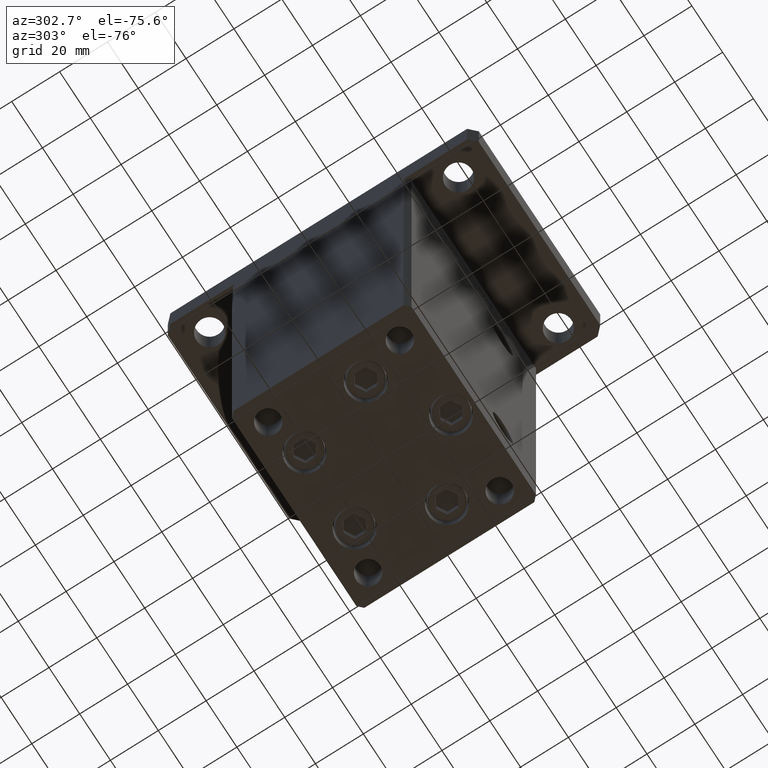
[diagram: clean part render]
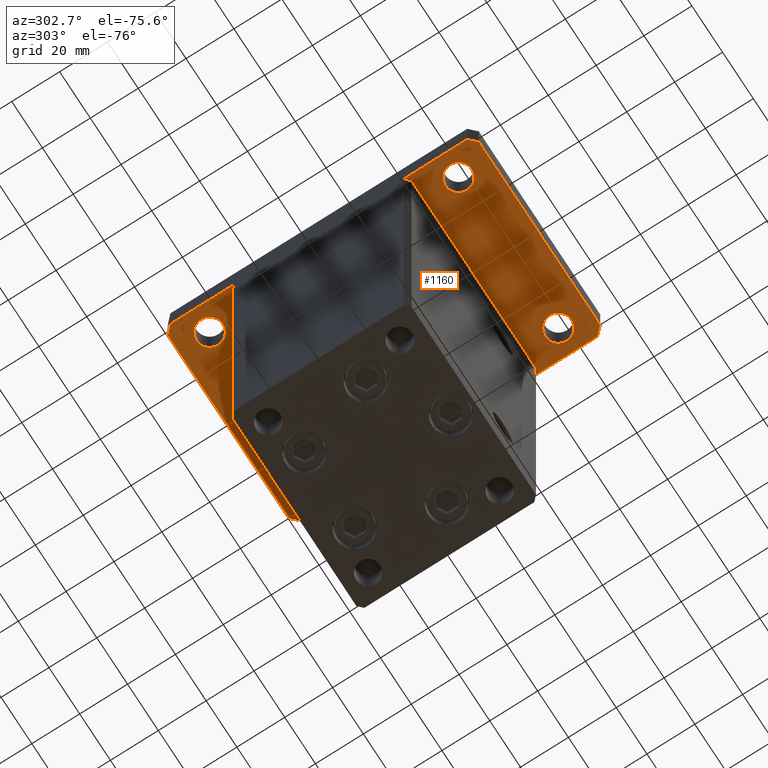
[diagram: same view with one face highlighted and labeled with its STEP entity id]
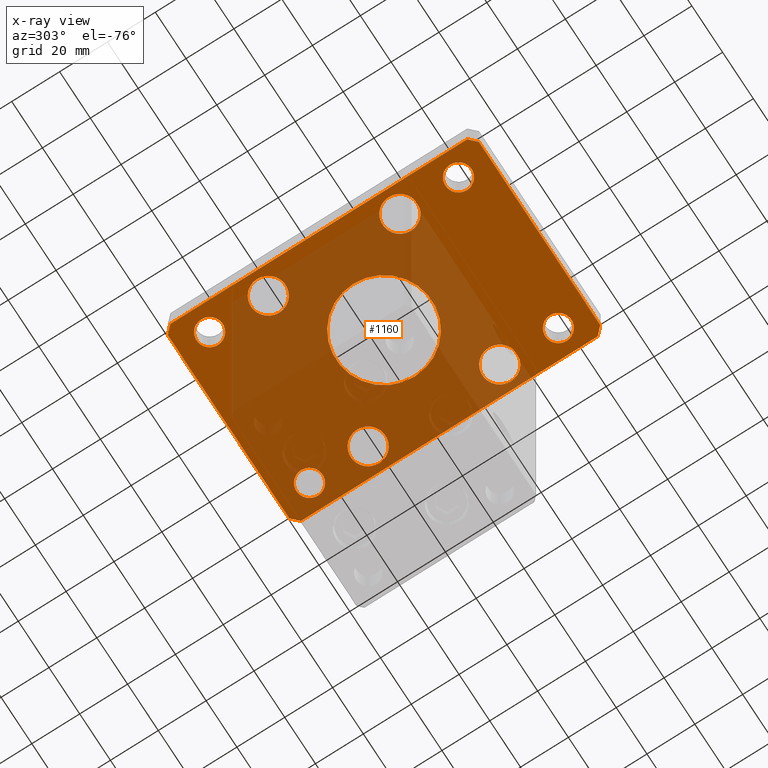
[diagram: x-ray of the same camera — body ghosted, the highlighted face saturated]
A machine part, auxiliary view. The second image highlights one B-rep face of the part: STEP entity #1160.
The next image is the same camera in x-ray: the body ghosted, the highlighted face saturated — about 61% of this face is hidden behind the body in this view.
In plain terms, the highlighted planar face has unit normal (0, 0, 1).
Its self-contained STEP definition (entity closure, byte-faithful):
#528 = CARTESIAN_POINT ( 'NONE',  ( -38.00000000000000000, 52.00000000000000000, 0.000000000000000000 ) ) ;
#980 = VERTEX_POINT ( 'NONE', #528 ) ;
#1033 = ORIENTED_EDGE ( 'NONE', *, *, #36657, .T. ) ;
#1100 = VERTEX_POINT ( 'NONE', #43910 ) ;
#1160 = ADVANCED_FACE ( 'NONE', ( #12403, #33302, #42239, #12947, #21378, #4282, #46581, #37913, #37641, #17568 ), #12674, .F. ) ;
#1718 = CARTESIAN_POINT ( 'NONE',  ( 42.50000000000000000, 62.00000000000000711, 0.000000000000000000 ) ) ;
#1781 = CARTESIAN_POINT ( 'NONE',  ( 25.25000000000000000, -27.50000000000000000, 0.000000000000000000 ) ) ;
#1896 = ORIENTED_EDGE ( 'NONE', *, *, #4293, .F. ) ;
#1966 = VERTEX_POINT ( 'NONE', #3195 ) ;
#2297 = DIRECTION ( 'NONE',  ( 0.000000000000000000, 0.000000000000000000, 1.000000000000000000 ) ) ;
#2573 = DIRECTION ( 'NONE',  ( 1.000000000000000000, 0.000000000000000000, 0.000000000000000000 ) ) ;
#2785 = DIRECTION ( 'NONE',  ( 0.7071067811865459074, 0.7071067811865491270, 0.000000000000000000 ) ) ;
#2841 = DIRECTION ( 'NONE',  ( 0.000000000000000000, 0.000000000000000000, 1.000000000000000000 ) ) ;
#3097 = CARTESIAN_POINT ( 'NONE',  ( 39.50000000000001421, -64.99999999999988631, 0.000000000000000000 ) ) ;
#3195 = CARTESIAN_POINT ( 'NONE',  ( 25.25000000000000000, 27.50000000000000000, 0.000000000000000000 ) ) ;
#3321 = DIRECTION ( 'NONE',  ( 1.000000000000000000, 0.000000000000000000, 0.000000000000000000 ) ) ;
#3846 = AXIS2_PLACEMENT_3D ( 'NONE', #47605, #2841, #2573 ) ;
#3907 = VERTEX_POINT ( 'NONE', #27377 ) ;
#3950 = CARTESIAN_POINT ( 'NONE',  ( -26.99999999999998579, -52.00000000000000711, 0.000000000000000000 ) ) ;
#4270 = CARTESIAN_POINT ( 'NONE',  ( -39.50000000000000000, -65.00000000000000000, 0.000000000000000000 ) ) ;
#4282 = FACE_BOUND ( 'NONE', #40270, .T. ) ;
#4293 = EDGE_CURVE ( 'NONE', #18669, #12353, #25619, .T. ) ;
#4370 = ORIENTED_EDGE ( 'NONE', *, *, #22704, .T. ) ;
#4406 = AXIS2_PLACEMENT_3D ( 'NONE', #38257, #4623, #8954 ) ;
#4574 = EDGE_LOOP ( 'NONE', ( #42222, #11655 ) ) ;
#4623 = DIRECTION ( 'NONE',  ( 0.000000000000000000, 0.000000000000000000, 1.000000000000000000 ) ) ;
#4687 = EDGE_LOOP ( 'NONE', ( #39669, #32406 ) ) ;
#4740 = DIRECTION ( 'NONE',  ( -1.000000000000000000, -3.513364001978340512E-16, 0.000000000000000000 ) ) ;
#5064 = CARTESIAN_POINT ( 'NONE',  ( 39.75000000000000000, -27.50000000000000000, 0.000000000000000000 ) ) ;
#5092 = DIRECTION ( 'NONE',  ( 1.000000000000000000, 0.000000000000000000, 0.000000000000000000 ) ) ;
#5287 = DIRECTION ( 'NONE',  ( 1.000000000000000000, 0.000000000000000000, 0.000000000000000000 ) ) ;
#5617 = DIRECTION ( 'NONE',  ( 0.000000000000000000, 0.000000000000000000, 1.000000000000000000 ) ) ;
#6117 = EDGE_CURVE ( 'NONE', #18788, #36698, #46958, .T. ) ;
#6279 = DIRECTION ( 'NONE',  ( 1.000000000000000000, 0.000000000000000000, 0.000000000000000000 ) ) ;
#6344 = EDGE_LOOP ( 'NONE', ( #44959, #4370 ) ) ;
#6580 = ORIENTED_EDGE ( 'NONE', *, *, #22005, .F. ) ;
#6722 = EDGE_LOOP ( 'NONE', ( #44213, #7542 ) ) ;
#7542 = ORIENTED_EDGE ( 'NONE', *, *, #43467, .T. ) ;
#7704 = AXIS2_PLACEMENT_3D ( 'NONE', #28317, #44055, #44847 ) ;
#7736 = DIRECTION ( 'NONE',  ( 1.000000000000000000, 0.000000000000000000, 0.000000000000000000 ) ) ;
#7807 = ORIENTED_EDGE ( 'NONE', *, *, #24632, .F. ) ;
#7871 = EDGE_CURVE ( 'NONE', #50352, #1100, #43259, .T. ) ;
#8535 = CARTESIAN_POINT ( 'NONE',  ( 32.50000000000000000, 51.99999999999999289, 0.000000000000000000 ) ) ;
#8711 = CARTESIAN_POINT ( 'NONE',  ( 37.99999999999999289, 51.99999999999999289, 0.000000000000000000 ) ) ;
#8917 = CIRCLE ( 'NONE', #47028, 7.249999999999999112 ) ;
#8944 = CARTESIAN_POINT ( 'NONE',  ( 32.49999999999997868, -52.00000000000000711, 0.000000000000000000 ) ) ;
#8954 = DIRECTION ( 'NONE',  ( 1.000000000000000000, 0.000000000000000000, 0.000000000000000000 ) ) ;
#9056 = EDGE_CURVE ( 'NONE', #10997, #30388, #52703, .T. ) ;
#9450 = LINE ( 'NONE', #26020, #23810 ) ;
#9485 = DIRECTION ( 'NONE',  ( 1.000000000000000000, 0.000000000000000000, 0.000000000000000000 ) ) ;
#9751 = ORIENTED_EDGE ( 'NONE', *, *, #15404, .T. ) ;
#10438 = CARTESIAN_POINT ( 'NONE',  ( -42.49999999999999289, -62.00000000000001421, 0.000000000000000000 ) ) ;
#10997 = VERTEX_POINT ( 'NONE', #22919 ) ;
#11147 = EDGE_CURVE ( 'NONE', #1966, #49994, #25034, .T. ) ;
#11320 = CIRCLE ( 'NONE', #41629, 20.00000000000000000 ) ;
#11655 = ORIENTED_EDGE ( 'NONE', *, *, #48796, .T. ) ;
#11934 = VERTEX_POINT ( 'NONE', #3097 ) ;
#12282 = CARTESIAN_POINT ( 'NONE',  ( -39.50000000000000000, -65.00000000000000000, 0.000000000000000000 ) ) ;
#12353 = VERTEX_POINT ( 'NONE', #37367 ) ;
#12403 = FACE_BOUND ( 'NONE', #14491, .T. ) ;
#12462 = CIRCLE ( 'NONE', #3846, 7.249999999999999112 ) ;
#12674 = PLANE ( 'NONE',  #29209 ) ;
#12947 = FACE_BOUND ( 'NONE', #6344, .T. ) ;
#13412 = LINE ( 'NONE', #41897, #44139 ) ;
#13442 = EDGE_LOOP ( 'NONE', ( #46529, #27819 ) ) ;
#13488 = CARTESIAN_POINT ( 'NONE',  ( 0.000000000000000000, 0.000000000000000000, 0.000000000000000000 ) ) ;
#13662 = DIRECTION ( 'NONE',  ( 1.000000000000000000, 0.000000000000000000, 0.000000000000000000 ) ) ;
#13969 = LINE ( 'NONE', #10438, #37465 ) ;
#14191 = DIRECTION ( 'NONE',  ( 0.000000000000000000, 0.000000000000000000, 1.000000000000000000 ) ) ;
#14491 = EDGE_LOOP ( 'NONE', ( #40571, #7807 ) ) ;
#15230 = DIRECTION ( 'NONE',  ( 0.000000000000000000, 0.000000000000000000, -1.000000000000000000 ) ) ;
#15361 = DIRECTION ( 'NONE',  ( 0.000000000000000000, 1.000000000000000000, 0.000000000000000000 ) ) ;
#15404 = EDGE_CURVE ( 'NONE', #30388, #10997, #52016, .T. ) ;
#16318 = AXIS2_PLACEMENT_3D ( 'NONE', #24824, #38100, #41354 ) ;
#16357 = EDGE_CURVE ( 'NONE', #3907, #25655, #11320, .T. ) ;
#16770 = DIRECTION ( 'NONE',  ( 0.000000000000000000, 0.000000000000000000, 1.000000000000000000 ) ) ;
#17088 = CARTESIAN_POINT ( 'NONE',  ( -32.49999999999997868, -52.00000000000000711, 0.000000000000000000 ) ) ;
#17568 = FACE_BOUND ( 'NONE', #4687, .T. ) ;
#17863 = AXIS2_PLACEMENT_3D ( 'NONE', #35962, #44897, #7736 ) ;
#18321 = VERTEX_POINT ( 'NONE', #52750 ) ;
#18669 = VERTEX_POINT ( 'NONE', #25552 ) ;
#18676 = VERTEX_POINT ( 'NONE', #21486 ) ;
#18726 = VECTOR ( 'NONE', #15361, 1000.000000000000000 ) ;
#18788 = VERTEX_POINT ( 'NONE', #45472 ) ;
#19769 = VECTOR ( 'NONE', #51350, 1000.000000000000000 ) ;
#19908 = CIRCLE ( 'NONE', #50205, 5.499999999999991118 ) ;
#20535 = VECTOR ( 'NONE', #37785, 1000.000000000000000 ) ;
#20874 = CIRCLE ( 'NONE', #4406, 7.249999999999999112 ) ;
#21173 = CIRCLE ( 'NONE', #51472, 7.249999999999999112 ) ;
#21254 = LINE ( 'NONE', #12282, #20535 ) ;
#21378 = FACE_BOUND ( 'NONE', #4574, .T. ) ;
#21410 = DIRECTION ( 'NONE',  ( -0.7071067811865466846, -0.7071067811865483499, 0.000000000000000000 ) ) ;
#21464 = CARTESIAN_POINT ( 'NONE',  ( 42.50000000000000000, -61.99999999999988631, 0.000000000000000000 ) ) ;
#21486 = CARTESIAN_POINT ( 'NONE',  ( -25.25000000000000711, 27.50000000000000000, 0.000000000000000000 ) ) ;
#22005 = EDGE_CURVE ( 'NONE', #12353, #48531, #13412, .T. ) ;
#22412 = VECTOR ( 'NONE', #30420, 1000.000000000000000 ) ;
#22625 = CIRCLE ( 'NONE', #46843, 5.499999999999998224 ) ;
#22704 = EDGE_CURVE ( 'NONE', #45754, #32461, #19908, .T. ) ;
#22919 = CARTESIAN_POINT ( 'NONE',  ( -37.99999999999997868, -52.00000000000000711, 0.000000000000000000 ) ) ;
#23117 = CARTESIAN_POINT ( 'NONE',  ( 0.000000000000000000, 0.000000000000000000, 0.000000000000000000 ) ) ;
#23282 = VERTEX_POINT ( 'NONE', #5064 ) ;
#23395 = DIRECTION ( 'NONE',  ( 0.000000000000000000, 0.000000000000000000, 1.000000000000000000 ) ) ;
#23810 = VECTOR ( 'NONE', #21410, 1000.000000000000000 ) ;
#24452 = CARTESIAN_POINT ( 'NONE',  ( 20.00000000000000000, 2.449293598294706513E-15, 0.000000000000000000 ) ) ;
#24632 = EDGE_CURVE ( 'NONE', #25655, #3907, #34682, .T. ) ;
#24797 = VERTEX_POINT ( 'NONE', #28768 ) ;
#24824 = CARTESIAN_POINT ( 'NONE',  ( -32.49999999999997868, -52.00000000000000711, 0.000000000000000000 ) ) ;
#25034 = CIRCLE ( 'NONE', #7704, 7.249999999999999112 ) ;
#25041 = DIRECTION ( 'NONE',  ( 0.000000000000000000, 0.000000000000000000, -1.000000000000000000 ) ) ;
#25470 = VERTEX_POINT ( 'NONE', #34774 ) ;
#25552 = CARTESIAN_POINT ( 'NONE',  ( 42.50000000000000000, 62.00000000000000711, 0.000000000000000000 ) ) ;
#25619 = LINE ( 'NONE', #1718, #19769 ) ;
#25654 = AXIS2_PLACEMENT_3D ( 'NONE', #48875, #49141, #3321 ) ;
#25655 = VERTEX_POINT ( 'NONE', #24452 ) ;
#25781 = EDGE_CURVE ( 'NONE', #32169, #23282, #20874, .T. ) ;
#26020 = CARTESIAN_POINT ( 'NONE',  ( -39.50000000000003553, 65.00000000000000000, 0.000000000000000000 ) ) ;
#26046 = AXIS2_PLACEMENT_3D ( 'NONE', #17088, #37427, #34155 ) ;
#26310 = DIRECTION ( 'NONE',  ( 0.000000000000000000, 0.000000000000000000, 1.000000000000000000 ) ) ;
#26675 = EDGE_CURVE ( 'NONE', #18321, #25470, #22625, .T. ) ;
#27377 = CARTESIAN_POINT ( 'NONE',  ( -20.00000000000000000, 0.000000000000000000, 0.000000000000000000 ) ) ;
#27819 = ORIENTED_EDGE ( 'NONE', *, *, #53079, .T. ) ;
#28181 = AXIS2_PLACEMENT_3D ( 'NONE', #40713, #28523, #40186 ) ;
#28317 = CARTESIAN_POINT ( 'NONE',  ( 32.50000000000000000, 27.50000000000000000, 0.000000000000000000 ) ) ;
#28523 = DIRECTION ( 'NONE',  ( 0.000000000000000000, 0.000000000000000000, 1.000000000000000000 ) ) ;
#28768 = CARTESIAN_POINT ( 'NONE',  ( -39.75000000000000711, 27.50000000000000000, 0.000000000000000000 ) ) ;
#28772 = CARTESIAN_POINT ( 'NONE',  ( -25.25000000000000000, -27.50000000000000000, 0.000000000000000000 ) ) ;
#28884 = ORIENTED_EDGE ( 'NONE', *, *, #9056, .T. ) ;
#29209 = AXIS2_PLACEMENT_3D ( 'NONE', #13488, #16770, #41709 ) ;
#29373 = CARTESIAN_POINT ( 'NONE',  ( 0.000000000000000000, 0.000000000000000000, 0.000000000000000000 ) ) ;
#29612 = EDGE_LOOP ( 'NONE', ( #49338, #42409, #34632, #42997, #6580, #1896, #29671, #37432 ) ) ;
#29671 = ORIENTED_EDGE ( 'NONE', *, *, #48803, .F. ) ;
#29934 = LINE ( 'NONE', #31535, #45387 ) ;
#29986 = CIRCLE ( 'NONE', #25654, 7.249999999999999112 ) ;
#30388 = VERTEX_POINT ( 'NONE', #3950 ) ;
#30420 = DIRECTION ( 'NONE',  ( 2.238352872228137677E-16, -1.000000000000000000, 0.000000000000000000 ) ) ;
#30901 = VERTEX_POINT ( 'NONE', #21464 ) ;
#31535 = CARTESIAN_POINT ( 'NONE',  ( 39.50000000000001421, -64.99999999999988631, 0.000000000000000000 ) ) ;
#31541 = AXIS2_PLACEMENT_3D ( 'NONE', #48128, #2297, #32131 ) ;
#32131 = DIRECTION ( 'NONE',  ( 1.000000000000000000, 0.000000000000000000, 0.000000000000000000 ) ) ;
#32169 = VERTEX_POINT ( 'NONE', #1781 ) ;
#32406 = ORIENTED_EDGE ( 'NONE', *, *, #37090, .T. ) ;
#32461 = VERTEX_POINT ( 'NONE', #43474 ) ;
#33075 = EDGE_CURVE ( 'NONE', #980, #48749, #39989, .T. ) ;
#33302 = FACE_OUTER_BOUND ( 'NONE', #29612, .T. ) ;
#33458 = EDGE_LOOP ( 'NONE', ( #28884, #9751 ) ) ;
#34155 = DIRECTION ( 'NONE',  ( 1.000000000000000000, 0.000000000000000000, 0.000000000000000000 ) ) ;
#34608 = EDGE_CURVE ( 'NONE', #36698, #48547, #13969, .T. ) ;
#34632 = ORIENTED_EDGE ( 'NONE', *, *, #6117, .F. ) ;
#34682 = CIRCLE ( 'NONE', #39018, 20.00000000000000000 ) ;
#34774 = CARTESIAN_POINT ( 'NONE',  ( 37.99999999999997868, -52.00000000000000711, 0.000000000000000000 ) ) ;
#35962 = CARTESIAN_POINT ( 'NONE',  ( -32.50000000000000000, 52.00000000000000000, 0.000000000000000000 ) ) ;
#36657 = EDGE_CURVE ( 'NONE', #18676, #24797, #8917, .T. ) ;
#36698 = VERTEX_POINT ( 'NONE', #48844 ) ;
#36720 = CIRCLE ( 'NONE', #28181, 5.499999999999991118 ) ;
#37090 = EDGE_CURVE ( 'NONE', #25470, #18321, #45316, .T. ) ;
#37348 = DIRECTION ( 'NONE',  ( 1.000000000000000000, 0.000000000000000000, 0.000000000000000000 ) ) ;
#37367 = CARTESIAN_POINT ( 'NONE',  ( 39.50000000000002842, 65.00000000000002842, 0.000000000000000000 ) ) ;
#37427 = DIRECTION ( 'NONE',  ( 0.000000000000000000, 0.000000000000000000, 1.000000000000000000 ) ) ;
#37432 = ORIENTED_EDGE ( 'NONE', *, *, #44515, .F. ) ;
#37465 = VECTOR ( 'NONE', #38919, 1000.000000000000000 ) ;
#37641 = FACE_BOUND ( 'NONE', #47420, .T. ) ;
#37785 = DIRECTION ( 'NONE',  ( 1.000000000000000000, 1.405345600791337191E-15, 0.000000000000000000 ) ) ;
#37885 = DIRECTION ( 'NONE',  ( 0.000000000000000000, 0.000000000000000000, 1.000000000000000000 ) ) ;
#37913 = FACE_BOUND ( 'NONE', #13442, .T. ) ;
#38100 = DIRECTION ( 'NONE',  ( 0.000000000000000000, 0.000000000000000000, 1.000000000000000000 ) ) ;
#38257 = CARTESIAN_POINT ( 'NONE',  ( 32.50000000000000000, -27.50000000000000000, 0.000000000000000000 ) ) ;
#38310 = DIRECTION ( 'NONE',  ( -1.000000000000000000, 0.000000000000000000, 0.000000000000000000 ) ) ;
#38919 = DIRECTION ( 'NONE',  ( 0.7071067811865483499, -0.7071067811865466846, 0.000000000000000000 ) ) ;
#39018 = AXIS2_PLACEMENT_3D ( 'NONE', #29373, #25041, #38310 ) ;
#39669 = ORIENTED_EDGE ( 'NONE', *, *, #26675, .T. ) ;
#39989 = CIRCLE ( 'NONE', #46915, 5.499999999999994671 ) ;
#40033 = LINE ( 'NONE', #52505, #18726 ) ;
#40186 = DIRECTION ( 'NONE',  ( 1.000000000000000000, 0.000000000000000000, 0.000000000000000000 ) ) ;
#40226 = ORIENTED_EDGE ( 'NONE', *, *, #43426, .T. ) ;
#40270 = EDGE_LOOP ( 'NONE', ( #44159, #41496 ) ) ;
#40571 = ORIENTED_EDGE ( 'NONE', *, *, #16357, .F. ) ;
#40597 = EDGE_CURVE ( 'NONE', #1100, #50352, #21173, .T. ) ;
#40660 = AXIS2_PLACEMENT_3D ( 'NONE', #45738, #37885, #37348 ) ;
#40713 = CARTESIAN_POINT ( 'NONE',  ( 32.50000000000000000, 51.99999999999999289, 0.000000000000000000 ) ) ;
#41354 = DIRECTION ( 'NONE',  ( 1.000000000000000000, 0.000000000000000000, 0.000000000000000000 ) ) ;
#41496 = ORIENTED_EDGE ( 'NONE', *, *, #7871, .T. ) ;
#41629 = AXIS2_PLACEMENT_3D ( 'NONE', #23117, #15230, #43976 ) ;
#41709 = DIRECTION ( 'NONE',  ( 1.000000000000000000, 0.000000000000000000, -0.000000000000000000 ) ) ;
#41897 = CARTESIAN_POINT ( 'NONE',  ( 39.50000000000002842, 65.00000000000002842, 0.000000000000000000 ) ) ;
#41947 = CIRCLE ( 'NONE', #31541, 7.249999999999999112 ) ;
#42222 = ORIENTED_EDGE ( 'NONE', *, *, #33075, .T. ) ;
#42239 = FACE_BOUND ( 'NONE', #33458, .T. ) ;
#42244 = CARTESIAN_POINT ( 'NONE',  ( 32.49999999999997868, -52.00000000000000711, 0.000000000000000000 ) ) ;
#42409 = ORIENTED_EDGE ( 'NONE', *, *, #34608, .F. ) ;
#42439 = DIRECTION ( 'NONE',  ( 0.000000000000000000, 0.000000000000000000, 1.000000000000000000 ) ) ;
#42550 = EDGE_CURVE ( 'NONE', #32461, #45754, #36720, .T. ) ;
#42997 = ORIENTED_EDGE ( 'NONE', *, *, #45193, .F. ) ;
#43259 = CIRCLE ( 'NONE', #40660, 7.249999999999999112 ) ;
#43426 = EDGE_CURVE ( 'NONE', #24797, #18676, #12462, .T. ) ;
#43467 = EDGE_CURVE ( 'NONE', #23282, #32169, #41947, .T. ) ;
#43474 = CARTESIAN_POINT ( 'NONE',  ( 27.00000000000001421, 51.99999999999999289, 0.000000000000000000 ) ) ;
#43485 = CARTESIAN_POINT ( 'NONE',  ( -32.50000000000000000, 52.00000000000000000, 0.000000000000000000 ) ) ;
#43910 = CARTESIAN_POINT ( 'NONE',  ( -39.75000000000000000, -27.50000000000000000, 0.000000000000000000 ) ) ;
#43976 = DIRECTION ( 'NONE',  ( -1.000000000000000000, 0.000000000000000000, 0.000000000000000000 ) ) ;
#44055 = DIRECTION ( 'NONE',  ( 0.000000000000000000, 0.000000000000000000, 1.000000000000000000 ) ) ;
#44127 = DIRECTION ( 'NONE',  ( 1.000000000000000000, 0.000000000000000000, 0.000000000000000000 ) ) ;
#44139 = VECTOR ( 'NONE', #4740, 1000.000000000000000 ) ;
#44159 = ORIENTED_EDGE ( 'NONE', *, *, #40597, .T. ) ;
#44213 = ORIENTED_EDGE ( 'NONE', *, *, #25781, .T. ) ;
#44511 = CARTESIAN_POINT ( 'NONE',  ( -32.50000000000000711, 27.50000000000000000, 0.000000000000000000 ) ) ;
#44515 = EDGE_CURVE ( 'NONE', #11934, #30901, #29934, .T. ) ;
#44847 = DIRECTION ( 'NONE',  ( 1.000000000000000000, 0.000000000000000000, 0.000000000000000000 ) ) ;
#44897 = DIRECTION ( 'NONE',  ( 0.000000000000000000, 0.000000000000000000, 1.000000000000000000 ) ) ;
#44959 = ORIENTED_EDGE ( 'NONE', *, *, #42550, .T. ) ;
#45193 = EDGE_CURVE ( 'NONE', #48531, #18788, #9450, .T. ) ;
#45316 = CIRCLE ( 'NONE', #52257, 5.499999999999998224 ) ;
#45387 = VECTOR ( 'NONE', #2785, 1000.000000000000114 ) ;
#45472 = CARTESIAN_POINT ( 'NONE',  ( -42.50000000000002132, 62.00000000000000711, 0.000000000000000000 ) ) ;
#45738 = CARTESIAN_POINT ( 'NONE',  ( -32.50000000000000000, -27.50000000000000000, 0.000000000000000000 ) ) ;
#45754 = VERTEX_POINT ( 'NONE', #8711 ) ;
#46529 = ORIENTED_EDGE ( 'NONE', *, *, #11147, .T. ) ;
#46581 = FACE_BOUND ( 'NONE', #6722, .T. ) ;
#46843 = AXIS2_PLACEMENT_3D ( 'NONE', #8944, #26310, #9485 ) ;
#46915 = AXIS2_PLACEMENT_3D ( 'NONE', #43485, #14191, #13662 ) ;
#46958 = LINE ( 'NONE', #47763, #22412 ) ;
#47028 = AXIS2_PLACEMENT_3D ( 'NONE', #44511, #23395, #6279 ) ;
#47420 = EDGE_LOOP ( 'NONE', ( #40226, #1033 ) ) ;
#47605 = CARTESIAN_POINT ( 'NONE',  ( -32.50000000000000711, 27.50000000000000000, 0.000000000000000000 ) ) ;
#47763 = CARTESIAN_POINT ( 'NONE',  ( -42.50000000000002132, 62.00000000000000711, 0.000000000000000000 ) ) ;
#48128 = CARTESIAN_POINT ( 'NONE',  ( 32.50000000000000000, -27.50000000000000000, 0.000000000000000000 ) ) ;
#48531 = VERTEX_POINT ( 'NONE', #50369 ) ;
#48547 = VERTEX_POINT ( 'NONE', #4270 ) ;
#48749 = VERTEX_POINT ( 'NONE', #48962 ) ;
#48796 = EDGE_CURVE ( 'NONE', #48749, #980, #49025, .T. ) ;
#48803 = EDGE_CURVE ( 'NONE', #30901, #18669, #40033, .T. ) ;
#48844 = CARTESIAN_POINT ( 'NONE',  ( -42.49999999999999289, -62.00000000000001421, 0.000000000000000000 ) ) ;
#48875 = CARTESIAN_POINT ( 'NONE',  ( 32.50000000000000000, 27.50000000000000000, 0.000000000000000000 ) ) ;
#48912 = CARTESIAN_POINT ( 'NONE',  ( 39.75000000000000000, 27.50000000000000000, 0.000000000000000000 ) ) ;
#48962 = CARTESIAN_POINT ( 'NONE',  ( -27.00000000000000711, 52.00000000000000000, 0.000000000000000000 ) ) ;
#49025 = CIRCLE ( 'NONE', #17863, 5.499999999999994671 ) ;
#49141 = DIRECTION ( 'NONE',  ( 0.000000000000000000, 0.000000000000000000, 1.000000000000000000 ) ) ;
#49247 = DIRECTION ( 'NONE',  ( 0.000000000000000000, 0.000000000000000000, 1.000000000000000000 ) ) ;
#49338 = ORIENTED_EDGE ( 'NONE', *, *, #51055, .F. ) ;
#49994 = VERTEX_POINT ( 'NONE', #48912 ) ;
#50205 = AXIS2_PLACEMENT_3D ( 'NONE', #8535, #42439, #5287 ) ;
#50352 = VERTEX_POINT ( 'NONE', #28772 ) ;
#50369 = CARTESIAN_POINT ( 'NONE',  ( -39.50000000000003553, 65.00000000000000000, 0.000000000000000000 ) ) ;
#51055 = EDGE_CURVE ( 'NONE', #48547, #11934, #21254, .T. ) ;
#51350 = DIRECTION ( 'NONE',  ( -0.7071067811865417996, 0.7071067811865532349, 0.000000000000000000 ) ) ;
#51472 = AXIS2_PLACEMENT_3D ( 'NONE', #52527, #49247, #44127 ) ;
#52016 = CIRCLE ( 'NONE', #26046, 5.499999999999994671 ) ;
#52257 = AXIS2_PLACEMENT_3D ( 'NONE', #42244, #5617, #5092 ) ;
#52505 = CARTESIAN_POINT ( 'NONE',  ( 42.50000000000000000, -61.99999999999988631, 0.000000000000000000 ) ) ;
#52527 = CARTESIAN_POINT ( 'NONE',  ( -32.50000000000000000, -27.50000000000000000, 0.000000000000000000 ) ) ;
#52703 = CIRCLE ( 'NONE', #16318, 5.499999999999994671 ) ;
#52750 = CARTESIAN_POINT ( 'NONE',  ( 26.99999999999998579, -52.00000000000000711, 0.000000000000000000 ) ) ;
#53079 = EDGE_CURVE ( 'NONE', #49994, #1966, #29986, .T. ) ;